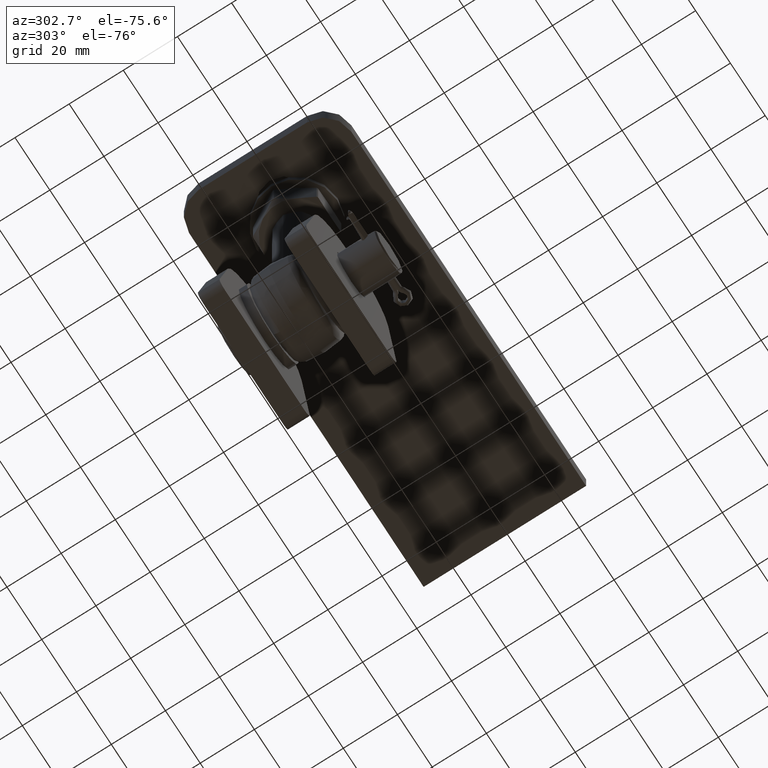
[diagram: clean part render]
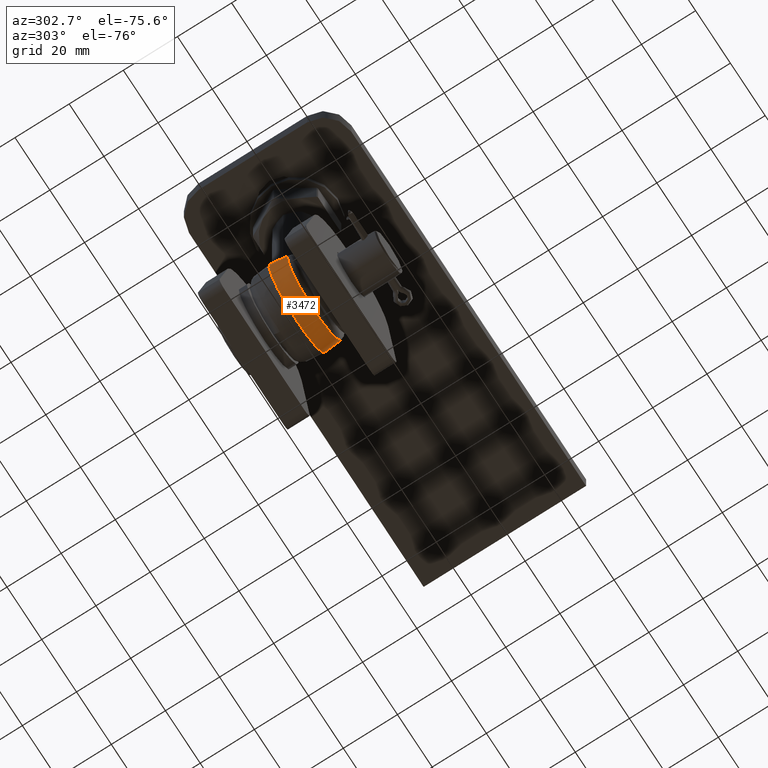
[diagram: same view with one face highlighted and labeled with its STEP entity id]
A machine part, auxiliary view. The second image highlights one B-rep face of the part: STEP entity #3472.
In plain terms, the highlighted conical surface has half-angle 6.34 deg.
Its self-contained STEP definition (entity closure, byte-faithful):
#73 = CARTESIAN_POINT ( 'NONE',  ( 7.646875434342088163, -2.430865528045758062, 14.03204079114771652 ) ) ;
#104 = CARTESIAN_POINT ( 'NONE',  ( -7.633177986073819810, -2.414325646818749505, 14.04139488420872617 ) ) ;
#281 = CARTESIAN_POINT ( 'NONE',  ( -8.000000000000003553, -0.6147576067159832292, 14.06587005194853646 ) ) ;
#987 = EDGE_CURVE ( 'NONE', #15464, #13936, #3764, .T. ) ;
#1238 = CARTESIAN_POINT ( 'NONE',  ( 7.438853820049366128, -3.005111151758781407, 14.07334226291324519 ) ) ;
#1377 = CARTESIAN_POINT ( 'NONE',  ( -6.887017033809046396, -4.081890912608338695, 14.21709103613912717 ) ) ;
#1436 = CARTESIAN_POINT ( 'NONE',  ( -4.890266757932997699, -6.331294578224543557, 14.75735962065583706 ) ) ;
#1456 = CARTESIAN_POINT ( 'NONE',  ( 4.890266757933003028, -6.331294578224539116, 14.75735962065576423 ) ) ;
#1491 = CARTESIAN_POINT ( 'NONE',  ( -7.425549545016943753, -2.992588921062731000, 14.07969522857325018 ) ) ;
#1637 = VERTEX_POINT ( 'NONE', #9224 ) ;
#1660 = CARTESIAN_POINT ( 'NONE',  ( -8.000000000000000000, 3.469446951953614189E-15, 14.14434515981563578 ) ) ;
#2138 = EDGE_LOOP ( 'NONE', ( #2637, #9812, #5086, #14507, #10853 ) ) ;
#2632 = CARTESIAN_POINT ( 'NONE',  ( 8.000000000000001776, -0.6152582171426504987, 14.06580614796946627 ) ) ;
#2637 = ORIENTED_EDGE ( 'NONE', *, *, #8045, .F. ) ;
#3094 = CIRCLE ( 'NONE', #9141, 16.25000000000000000 ) ;
#3174 = AXIS2_PLACEMENT_3D ( 'NONE', #6776, #13512, #10920 ) ;
#3345 = AXIS2_PLACEMENT_3D ( 'NONE', #10766, #16072, #5412 ) ;
#3472 = ADVANCED_FACE ( 'NONE', ( #12113 ), #12526, .T. ) ;
#3702 = CARTESIAN_POINT ( 'NONE',  ( 0.000000000000000000, -8.999999999999996447, -1.469576158976824144E-15 ) ) ;
#3764 = CIRCLE ( 'NONE', #3174, 16.25000000000000000 ) ;
#4006 = AXIS2_PLACEMENT_3D ( 'NONE', #3702, #14327, #7432 ) ;
#4029 = CARTESIAN_POINT ( 'NONE',  ( -5.801970511724211299, -5.540895092423200552, 14.52327154617140792 ) ) ;
#4051 = CARTESIAN_POINT ( 'NONE',  ( 5.371197808628562775, -5.959825346929694234, 14.64147111422503400 ) ) ;
#4112 = EDGE_CURVE ( 'NONE', #1637, #11419, #8101, .T. ) ;
#4695 = VERTEX_POINT ( 'NONE', #1660 ) ;
#5086 = ORIENTED_EDGE ( 'NONE', *, *, #8843, .F. ) ;
#5355 = CARTESIAN_POINT ( 'NONE',  ( 6.554250401822807603, -4.597299837772294673, 14.31058039402641491 ) ) ;
#5412 = DIRECTION ( 'NONE',  ( 0.000000000000000000, 0.000000000000000000, -1.000000000000000000 ) ) ;
#6494 = CARTESIAN_POINT ( 'NONE',  ( 8.000000000000000000, 3.228496193458325382E-15, 14.14434515981563401 ) ) ;
#6776 = CARTESIAN_POINT ( 'NONE',  ( 0.000000000000000000, 3.469446951953614189E-15, -1.469576158976824144E-15 ) ) ;
#7432 = DIRECTION ( 'NONE',  ( 0.000000000000000000, 0.000000000000000000, 1.000000000000000000 ) ) ;
#8045 = EDGE_CURVE ( 'NONE', #1637, #15464, #13906, .T. ) ;
#8101 = CIRCLE ( 'NONE', #3345, 15.54652282464171797 ) ;
#8169 = CARTESIAN_POINT ( 'NONE',  ( -7.306096291146534583, -3.273109272230928735, 14.10725161645347114 ) ) ;
#8782 = CARTESIAN_POINT ( 'NONE',  ( 8.000000000000000000, 3.228496193458325382E-15, 14.14434515981563401 ) ) ;
#8843 = EDGE_CURVE ( 'NONE', #4695, #11419, #12476, .T. ) ;
#9141 = AXIS2_PLACEMENT_3D ( 'NONE', #12732, #11412, #10002 ) ;
#9224 = CARTESIAN_POINT ( 'NONE',  ( 4.890266757933003028, -6.331294578224539116, 14.75735962065576423 ) ) ;
#9352 = CARTESIAN_POINT ( 'NONE',  ( -7.721162730447673539, -2.116029303812059670, 14.03082168912360927 ) ) ;
#9417 = CARTESIAN_POINT ( 'NONE',  ( -6.556586432556584576, -4.593910251498755315, 14.30991748704021838 ) ) ;
#9812 = ORIENTED_EDGE ( 'NONE', *, *, #4112, .T. ) ;
#10002 = DIRECTION ( 'NONE',  ( 0.000000000000000000, 0.000000000000000000, 1.000000000000000000 ) ) ;
#10641 = CARTESIAN_POINT ( 'NONE',  ( 6.374683501389315055, -4.842948478774855126, 14.36195665167281632 ) ) ;
#10685 = CARTESIAN_POINT ( 'NONE',  ( -6.376282426182662277, -4.840879825258349811, 14.36150275321476855 ) ) ;
#10766 = CARTESIAN_POINT ( 'NONE',  ( 0.000000000000000000, -6.331294578224539116, -1.469576158976824144E-15 ) ) ;
#10853 = ORIENTED_EDGE ( 'NONE', *, *, #987, .F. ) ;
#10920 = DIRECTION ( 'NONE',  ( 0.000000000000000000, 0.000000000000000000, 1.000000000000000000 ) ) ;
#11412 = DIRECTION ( 'NONE',  ( -0.000000000000000000, 1.000000000000000000, -0.000000000000000000 ) ) ;
#11419 = VERTEX_POINT ( 'NONE', #14555 ) ;
#12094 = CARTESIAN_POINT ( 'NONE',  ( 5.801316083932565704, -5.541452024344921234, 14.52344880042866038 ) ) ;
#12113 = FACE_OUTER_BOUND ( 'NONE', #2138, .T. ) ;
#12476 = B_SPLINE_CURVE_WITH_KNOTS ( 'NONE', 3,
 ( #14607, #281, #16046, #9352, #104, #1491, #8169, #13446, #1377, #9417, #10685, #4029, #13331, #1436 ),
 .UNSPECIFIED., .F., .F.,
 ( 4, 2, 2, 2, 2, 2, 4 ),
 ( 1.986167726057597195E-07, 0.001831719116597130921, 0.002747479366509392867, 0.003663239616421654597, 0.004578999866333916327, 0.005494760116246178057, 0.007326280616070703251 ),
 .UNSPECIFIED. ) ;
#12526 = CONICAL_SURFACE ( 'NONE', #4006, 15.24999999999999822, 0.1106572211738959394 ) ;
#12732 = CARTESIAN_POINT ( 'NONE',  ( 0.000000000000000000, 3.469446951953614189E-15, -1.469576158976824144E-15 ) ) ;
#13331 = CARTESIAN_POINT ( 'NONE',  ( -5.371346727560164958, -5.959710322539056193, 14.64143522967872535 ) ) ;
#13446 = CARTESIAN_POINT ( 'NONE',  ( -7.036830876839568205, -3.817760932042040700, 14.17594739047688179 ) ) ;
#13512 = DIRECTION ( 'NONE',  ( -0.000000000000000000, 1.000000000000000000, -0.000000000000000000 ) ) ;
#13906 = B_SPLINE_CURVE_WITH_KNOTS ( 'NONE', 3,
 ( #1456, #4051, #12094, #10641, #5355, #17119, #14624, #1238, #73, #14449, #2632, #6494 ),
 .UNSPECIFIED., .F., .F.,
 ( 4, 2, 2, 2, 2, 4 ),
 ( 0.01788605488158382523, 0.01971785334292978573, 0.02063375257360276424, 0.02154965180427574623, 0.02338145026562170672, 0.02521324872696766722 ),
 .UNSPECIFIED. ) ;
#13936 = VERTEX_POINT ( 'NONE', #15044 ) ;
#14327 = DIRECTION ( 'NONE',  ( -0.000000000000000000, 1.000000000000000000, -0.000000000000000000 ) ) ;
#14449 = CARTESIAN_POINT ( 'NONE',  ( 7.929955858404096780, -1.224586137251351126, 14.02819458966201971 ) ) ;
#14507 = ORIENTED_EDGE ( 'NONE', *, *, #16183, .F. ) ;
#14555 = CARTESIAN_POINT ( 'NONE',  ( -4.890266757932997699, -6.331294578224543557, 14.75735962065583706 ) ) ;
#14607 = CARTESIAN_POINT ( 'NONE',  ( -8.000000000000000000, 3.469446951953614189E-15, 14.14434515981563578 ) ) ;
#14624 = CARTESIAN_POINT ( 'NONE',  ( 7.035682555711584740, -3.819814232770715190, 14.17626044242626193 ) ) ;
#15044 = CARTESIAN_POINT ( 'NONE',  ( 0.000000000000000000, 3.469446951953614189E-15, -16.25000000000000000 ) ) ;
#15464 = VERTEX_POINT ( 'NONE', #8782 ) ;
#16046 = CARTESIAN_POINT ( 'NONE',  ( -7.930059011978171313, -1.220614503078633950, 14.02862362043325817 ) ) ;
#16072 = DIRECTION ( 'NONE',  ( -0.000000000000000000, 1.000000000000000000, -0.000000000000000000 ) ) ;
#16183 = EDGE_CURVE ( 'NONE', #13936, #4695, #3094, .T. ) ;
#17119 = CARTESIAN_POINT ( 'NONE',  ( 6.885826319043452770, -4.083963764793232087, 14.21741895314991311 ) ) ;